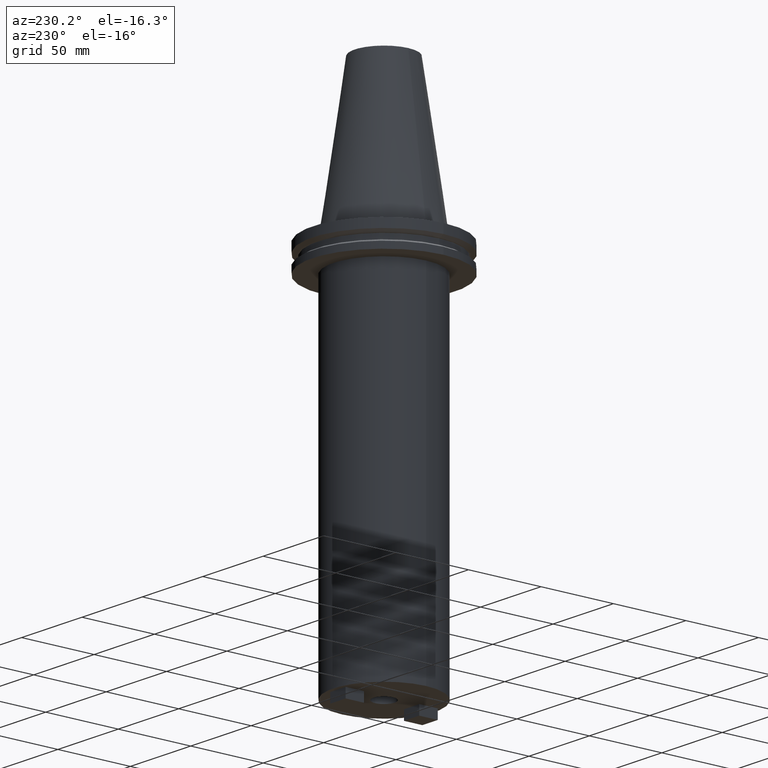
[diagram: clean part render]
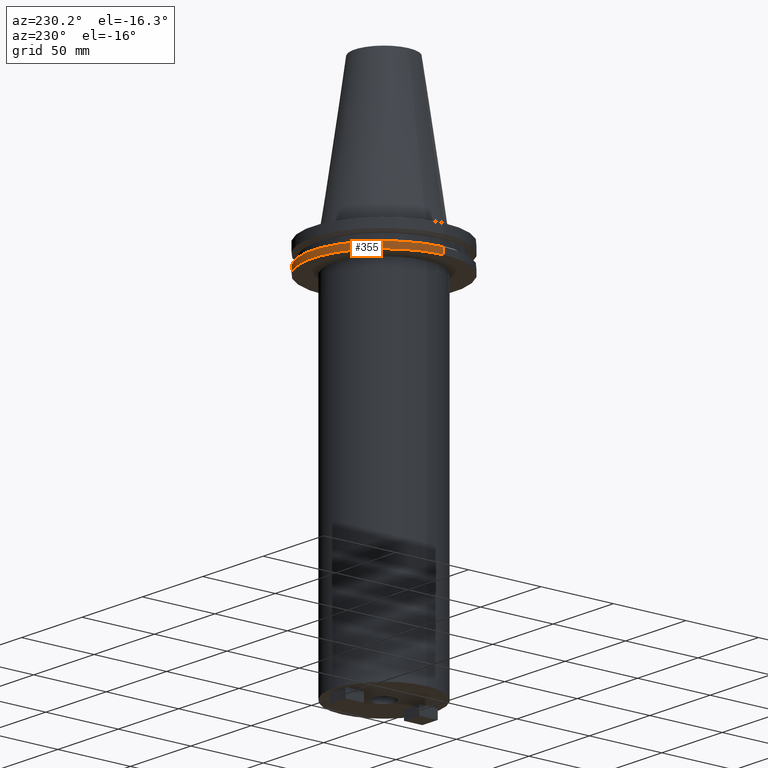
[diagram: same view with one face highlighted and labeled with its STEP entity id]
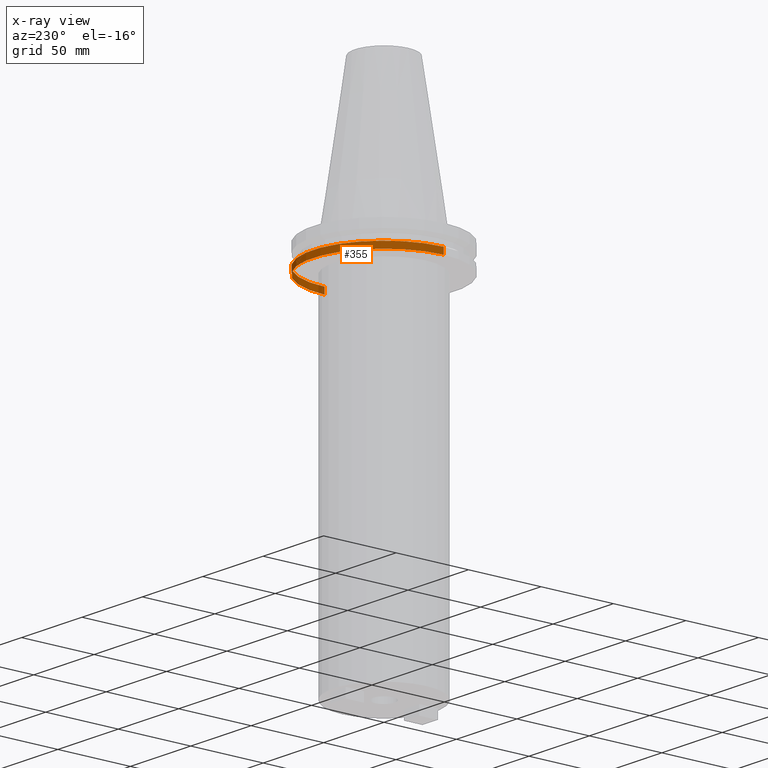
[diagram: x-ray of the same camera — body ghosted, the highlighted face saturated]
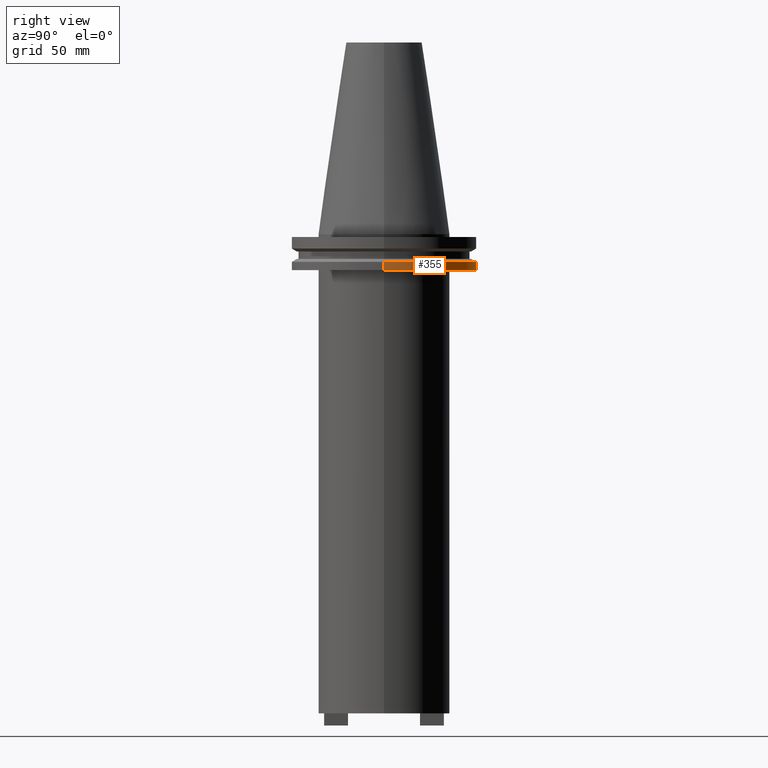
[diagram: same view with one face highlighted and labeled with its STEP entity id]
A machine part, auxiliary view. The second image highlights one B-rep face of the part: STEP entity #355.
The next image is the same camera in x-ray: the body ghosted, the highlighted face saturated — about 3% of this face is hidden behind the body in this view.
A second angle (right view) of the same face is appended — the face is thin or edge-on in the first view.
In plain terms, the highlighted cylindrical surface (partial cylindrical patch) has radius 49.215 mm, axis along (-0, -0, 1).
Its self-contained STEP definition (entity closure, byte-faithful):
#46 = DIRECTION ( 'NONE',  ( -0.000000000000000000, -0.000000000000000000, 1.000000000000000000 ) ) ;
#114 = AXIS2_PLACEMENT_3D ( 'NONE', #568, #177, #875 ) ;
#127 = CARTESIAN_POINT ( 'NONE',  ( 0.000000000000000000, 0.000000000000000000, -14.65761014474876944 ) ) ;
#145 = VERTEX_POINT ( 'NONE', #742 ) ;
#162 = CIRCLE ( 'NONE', #735, 49.21499999999998920 ) ;
#177 = DIRECTION ( 'NONE',  ( -0.000000000000000000, -0.000000000000000000, 1.000000000000000000 ) ) ;
#191 = CARTESIAN_POINT ( 'NONE',  ( -49.21499999999998920, 6.027099222003697037E-15, 101.5999999999999943 ) ) ;
#194 = EDGE_CURVE ( 'NONE', #145, #396, #725, .T. ) ;
#240 = VECTOR ( 'NONE', #46, 1000.000000000000000 ) ;
#260 = CYLINDRICAL_SURFACE ( 'NONE', #114, 49.21499999999998920 ) ;
#305 = CARTESIAN_POINT ( 'NONE',  ( -49.21499999999998920, 6.027099222003697037E-15, -14.65761014474876944 ) ) ;
#315 = AXIS2_PLACEMENT_3D ( 'NONE', #960, #788, #708 ) ;
#346 = FACE_OUTER_BOUND ( 'NONE', #964, .T. ) ;
#347 = CARTESIAN_POINT ( 'NONE',  ( 49.21499999999998920, 0.000000000000000000, 101.5999999999999943 ) ) ;
#355 = ADVANCED_FACE ( 'NONE', ( #346 ), #260, .T. ) ;
#357 = LINE ( 'NONE', #191, #240 ) ;
#396 = VERTEX_POINT ( 'NONE', #489 ) ;
#437 = DIRECTION ( 'NONE',  ( -0.000000000000000000, -0.000000000000000000, 1.000000000000000000 ) ) ;
#444 = DIRECTION ( 'NONE',  ( 1.000000000000000000, 0.000000000000000000, 0.000000000000000000 ) ) ;
#474 = EDGE_CURVE ( 'NONE', #145, #1002, #966, .T. ) ;
#489 = CARTESIAN_POINT ( 'NONE',  ( 49.21499999999998920, 0.000000000000000000, -14.65761014474876944 ) ) ;
#508 = ORIENTED_EDGE ( 'NONE', *, *, #772, .F. ) ;
#534 = EDGE_CURVE ( 'NONE', #1002, #669, #357, .T. ) ;
#557 = ORIENTED_EDGE ( 'NONE', *, *, #534, .T. ) ;
#568 = CARTESIAN_POINT ( 'NONE',  ( 0.000000000000000000, 0.000000000000000000, 101.5999999999999943 ) ) ;
#649 = DIRECTION ( 'NONE',  ( -0.000000000000000000, -0.000000000000000000, 1.000000000000000000 ) ) ;
#669 = VERTEX_POINT ( 'NONE', #305 ) ;
#687 = CARTESIAN_POINT ( 'NONE',  ( -49.21499999999998920, 6.027099222003697037E-15, -19.04999999999999716 ) ) ;
#708 = DIRECTION ( 'NONE',  ( 1.000000000000000000, 0.000000000000000000, 0.000000000000000000 ) ) ;
#725 = LINE ( 'NONE', #347, #829 ) ;
#735 = AXIS2_PLACEMENT_3D ( 'NONE', #127, #437, #444 ) ;
#742 = CARTESIAN_POINT ( 'NONE',  ( 49.21499999999998920, 0.000000000000000000, -19.04999999999999716 ) ) ;
#772 = EDGE_CURVE ( 'NONE', #396, #669, #162, .T. ) ;
#788 = DIRECTION ( 'NONE',  ( -0.000000000000000000, -0.000000000000000000, 1.000000000000000000 ) ) ;
#829 = VECTOR ( 'NONE', #649, 1000.000000000000000 ) ;
#875 = DIRECTION ( 'NONE',  ( 1.000000000000000000, 0.000000000000000000, 0.000000000000000000 ) ) ;
#930 = ORIENTED_EDGE ( 'NONE', *, *, #194, .F. ) ;
#960 = CARTESIAN_POINT ( 'NONE',  ( 0.000000000000000000, 0.000000000000000000, -19.04999999999999716 ) ) ;
#964 = EDGE_LOOP ( 'NONE', ( #990, #557, #508, #930 ) ) ;
#966 = CIRCLE ( 'NONE', #315, 49.21499999999998920 ) ;
#990 = ORIENTED_EDGE ( 'NONE', *, *, #474, .T. ) ;
#1002 = VERTEX_POINT ( 'NONE', #687 ) ;